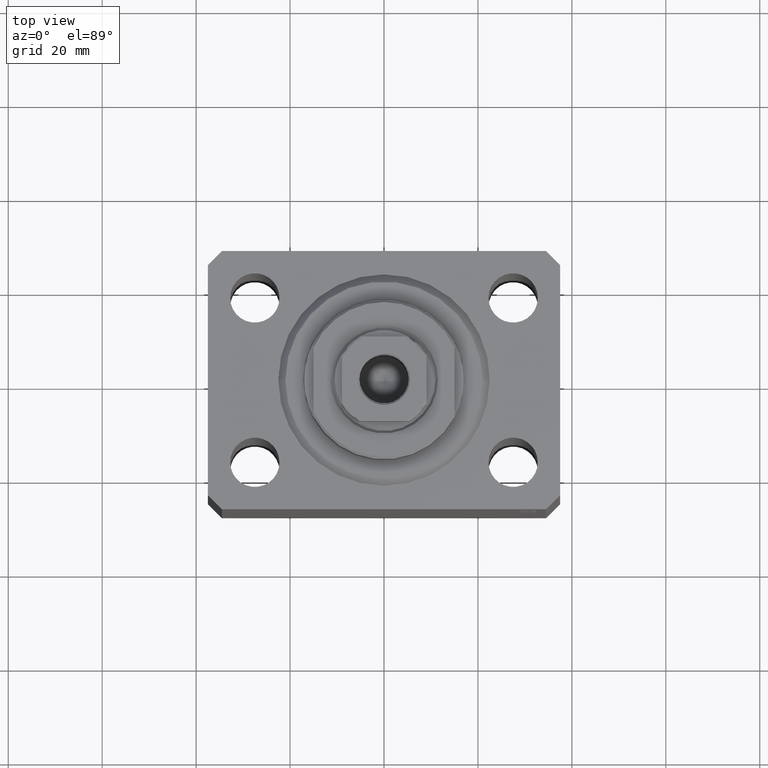
[diagram: clean part render]
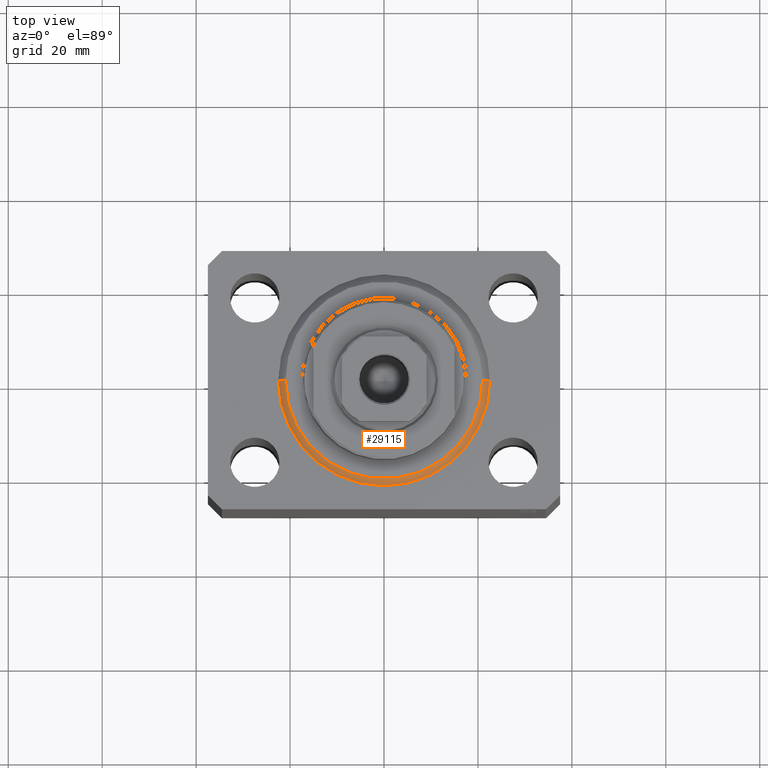
[diagram: same view with one face highlighted and labeled with its STEP entity id]
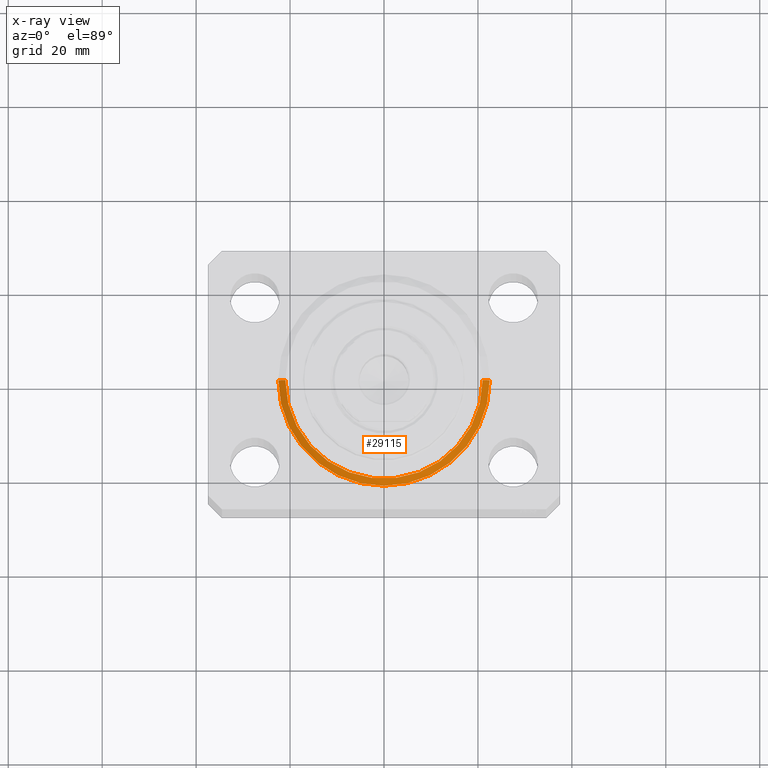
[diagram: x-ray of the same camera — body ghosted, the highlighted face saturated]
A machine part, top view. The second image highlights one B-rep face of the part: STEP entity #29115.
The next image is the same camera in x-ray: the body ghosted, the highlighted face saturated — about 0% of this face is hidden behind the body in this view.
In plain terms, the highlighted conical surface has half-angle 45 deg.
Its self-contained STEP definition (entity closure, byte-faithful):
#2877 = FACE_OUTER_BOUND ( 'NONE', #32009, .T. ) ;
#3650 = AXIS2_PLACEMENT_3D ( 'NONE', #7261, #7709, #34768 ) ;
#4825 = ORIENTED_EDGE ( 'NONE', *, *, #26549, .T. ) ;
#7261 = CARTESIAN_POINT ( 'NONE',  ( 0.000000000000000000, 0.000000000000000000, 1.500000000000039524 ) ) ;
#7709 = DIRECTION ( 'NONE',  ( -0.000000000000000000, -0.000000000000000000, 1.000000000000000000 ) ) ;
#7982 = ORIENTED_EDGE ( 'NONE', *, *, #36753, .F. ) ;
#8389 = VERTEX_POINT ( 'NONE', #42995 ) ;
#9865 = DIRECTION ( 'NONE',  ( -0.000000000000000000, -0.000000000000000000, 1.000000000000000000 ) ) ;
#10498 = VERTEX_POINT ( 'NONE', #23957 ) ;
#12043 = CARTESIAN_POINT ( 'NONE',  ( -22.50000000000000355, 2.755455298081545172E-15, 1.500000000000039524 ) ) ;
#12744 = EDGE_CURVE ( 'NONE', #10498, #34841, #38230, .T. ) ;
#13619 = DIRECTION ( 'NONE',  ( -0.000000000000000000, -0.000000000000000000, -1.000000000000000000 ) ) ;
#14084 = VECTOR ( 'NONE', #14555, 1000.000000000000114 ) ;
#14555 = DIRECTION ( 'NONE',  ( 0.7071067811865500152, 0.000000000000000000, 0.7071067811865451302 ) ) ;
#16432 = DIRECTION ( 'NONE',  ( 1.000000000000000000, 0.000000000000000000, 0.000000000000000000 ) ) ;
#19833 = ORIENTED_EDGE ( 'NONE', *, *, #12744, .F. ) ;
#20234 = CARTESIAN_POINT ( 'NONE',  ( 22.50000000000000355, 2.755455298081544383E-15, 1.500000000000039524 ) ) ;
#22794 = ORIENTED_EDGE ( 'NONE', *, *, #34525, .F. ) ;
#23957 = CARTESIAN_POINT ( 'NONE',  ( -22.50000000000000355, 0.000000000000000000, 1.500000000000039524 ) ) ;
#26549 = EDGE_CURVE ( 'NONE', #36873, #34841, #27610, .T. ) ;
#26756 = VECTOR ( 'NONE', #35931, 1000.000000000000114 ) ;
#27357 = DIRECTION ( 'NONE',  ( 1.000000000000000000, 0.000000000000000000, 0.000000000000000000 ) ) ;
#27610 = LINE ( 'NONE', #41367, #14084 ) ;
#29115 = ADVANCED_FACE ( 'NONE', ( #2877 ), #34047, .T. ) ;
#29160 = LINE ( 'NONE', #12043, #26756 ) ;
#29724 = CARTESIAN_POINT ( 'NONE',  ( 0.000000000000000000, 0.000000000000000000, 1.500000000000039524 ) ) ;
#30484 = AXIS2_PLACEMENT_3D ( 'NONE', #29724, #9865, #16432 ) ;
#30747 = CARTESIAN_POINT ( 'NONE',  ( 0.000000000000000000, 0.000000000000000000, 0.000000000000000000 ) ) ;
#32009 = EDGE_LOOP ( 'NONE', ( #7982, #22794, #4825, #19833 ) ) ;
#34047 = CONICAL_SURFACE ( 'NONE', #30484, 22.50000000000000355, 0.7853981633974517207 ) ;
#34525 = EDGE_CURVE ( 'NONE', #36873, #8389, #37788, .T. ) ;
#34768 = DIRECTION ( 'NONE',  ( 1.000000000000000000, 0.000000000000000000, 0.000000000000000000 ) ) ;
#34841 = VERTEX_POINT ( 'NONE', #20234 ) ;
#35931 = DIRECTION ( 'NONE',  ( -0.7071067811865500152, 8.659560562354962440E-17, 0.7071067811865451302 ) ) ;
#36753 = EDGE_CURVE ( 'NONE', #8389, #10498, #29160, .T. ) ;
#36873 = VERTEX_POINT ( 'NONE', #38148 ) ;
#37788 = CIRCLE ( 'NONE', #41395, 20.99999999999995381 ) ;
#38148 = CARTESIAN_POINT ( 'NONE',  ( 20.99999999999995381, 0.000000000000000000, 0.000000000000000000 ) ) ;
#38230 = CIRCLE ( 'NONE', #3650, 22.50000000000000355 ) ;
#41367 = CARTESIAN_POINT ( 'NONE',  ( 22.50000000000000355, 0.000000000000000000, 1.500000000000039524 ) ) ;
#41395 = AXIS2_PLACEMENT_3D ( 'NONE', #30747, #13619, #27357 ) ;
#42995 = CARTESIAN_POINT ( 'NONE',  ( -20.99999999999995381, 2.663606788145490261E-15, 0.000000000000000000 ) ) ;